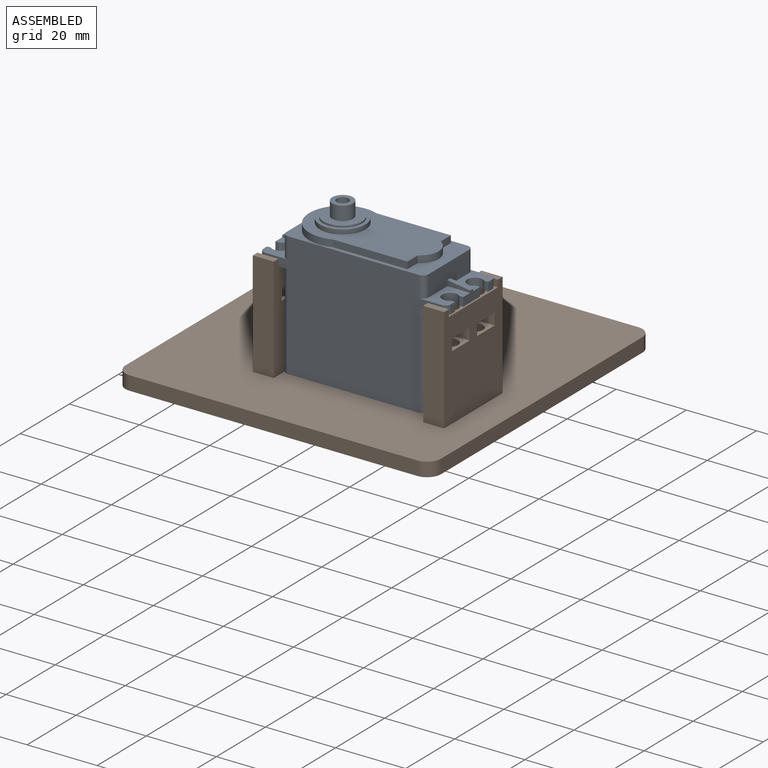
[diagram: assembled view]
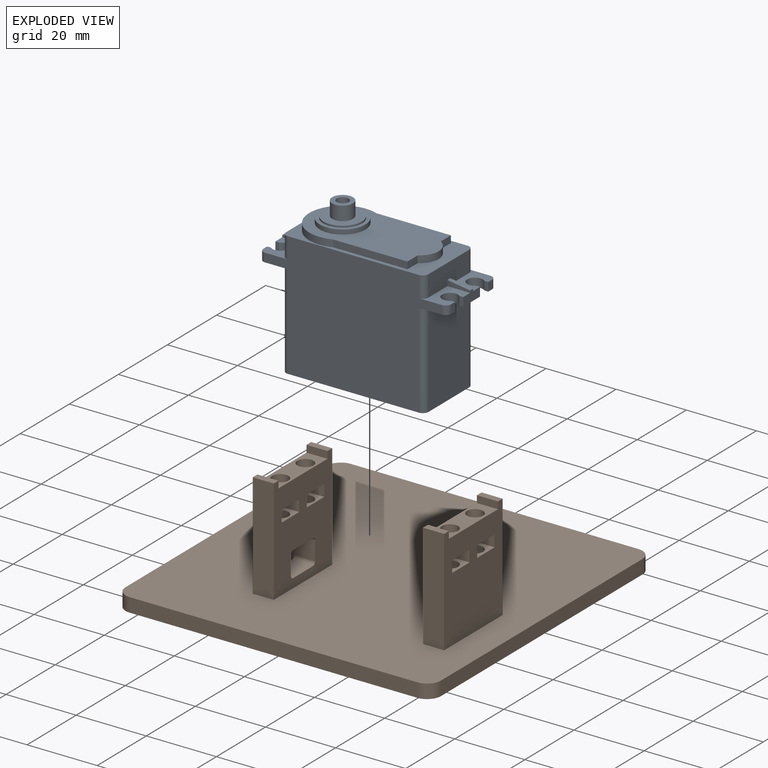
[diagram: exploded view]
GUIDED TOUR — FREECAD ASSEMBLY "Base_Plate"

This assembly has 2 components, labeled P0..P1 below (a component is one placed body or linked part; the same part can appear more than once), held together by 0 modeled joints plus 1 derived contact edge. A joint is a constraint between two components; its type names the relative motion it leaves free:
  CONTACT — a derived adjacency edge — the two components touch in the source model (clearance under 2% of the assembly's diagonal); it is measured from the geometry, not a modeled constraint.
Axis/direction vectors are unit vectors and 'through' points are millimeter coordinates, both in the assembly's world frame.

MATES
  1. CONTACT "contact_0_1": P0 <-> P1, contact direction (0.000, 0.000, -1.000) through (-11.93, 5.04, -10.50) mm (derived from contact, not a modeled constraint)

ASSEMBLY ORDER
  1. P0 — the base component [order verified]
  2. P1 [order verified]
Order-tag legend:
  [order verified] — this step's position reverses a verified removal order: the component was checked to insert without passing through the ones already placed.

Of the 2 components, 2 carry a construction recipe — the FreeCAD feature program (sketches with constraints, then the solid features that consume them) that regenerates the part from scratch, quoted from this document or from the linked companion document it references; the rest are supplied as boundary geometry only. The tour below walks the components in assembly order: each is shown spotlighted twice — in the assembled view, then in the exploded view, where a leader line traces a displaced component back to its assembled socket (components that stay in place when exploded have no leader line; saturated green if recipe-attached, orange if geometry-only; every other component desaturated gray) — followed by its recipe or geometry summary and the mates that hold it.
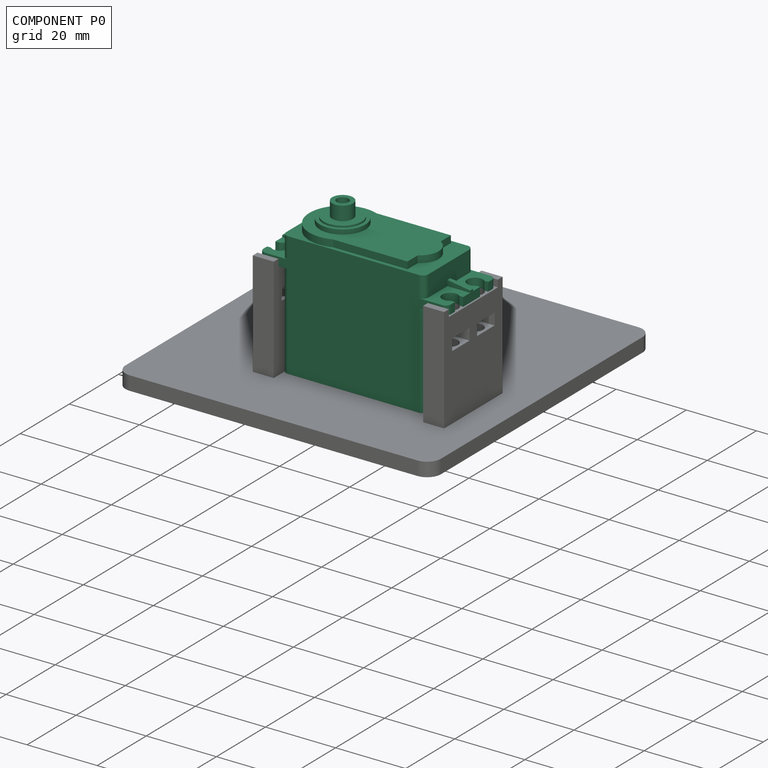
[diagram: component P0 — assembled]
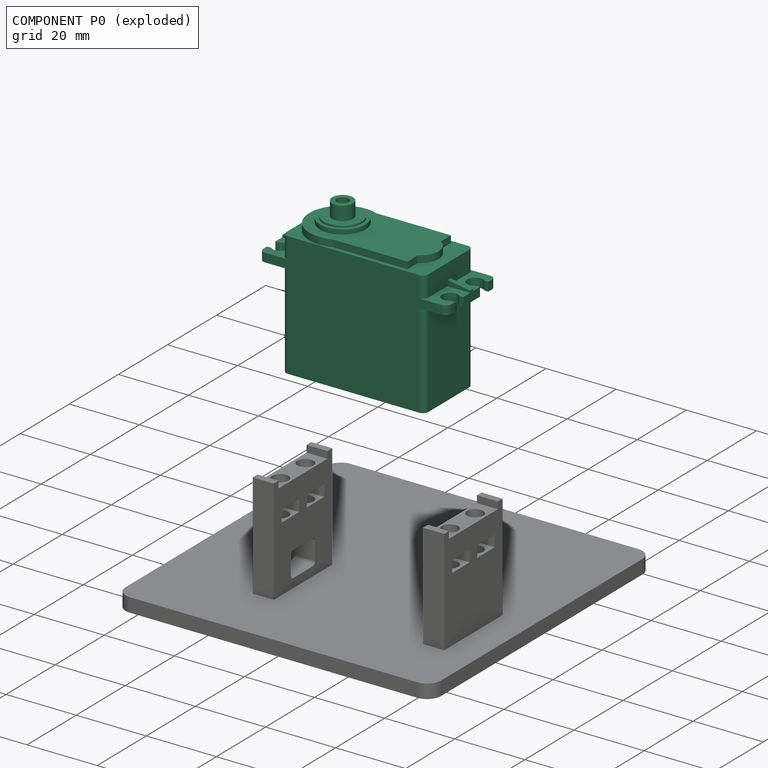
[diagram: component P0 — exploded]
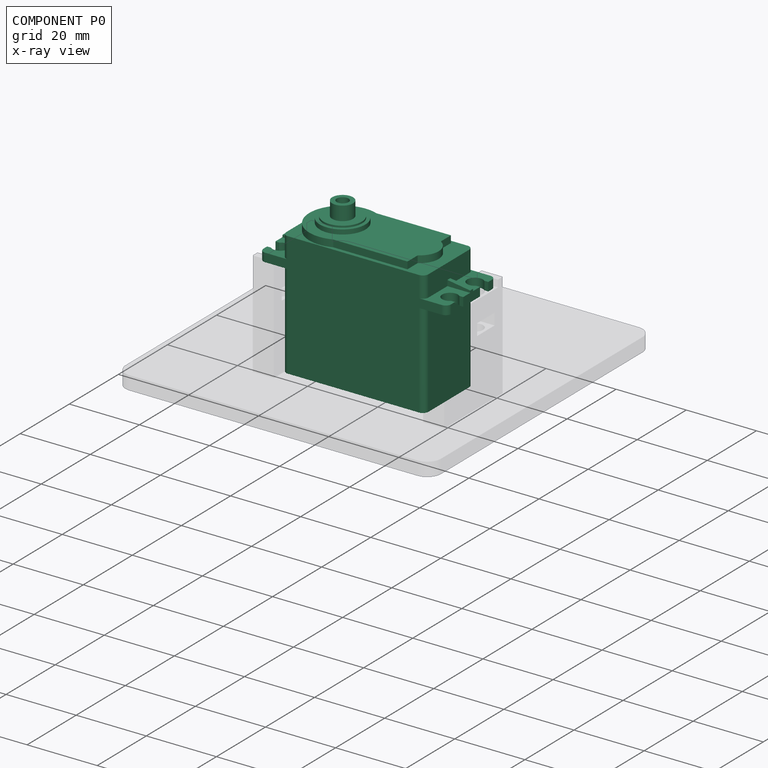
[diagram: component P0 — x-ray view]
COMPONENT P0 — recipe-attached ("Link(Hitec_D625MW)", modeled in this document).
Held by: resting contact with P1 (derived edge).
Construction recipe (the document's own serialized feature program — sketch geometry with constraints, then the solid features built on it; lengths are millimeters unless a unit is written):

FEATURE [Sketcher::SketchObject] Sketch
  ArcFitTolerance = 1e-06
  AttachmentSupport = -> [XY_Plane]
  ExternalBSplineMaxDegree = 5
  ExternalBSplineTolerance = 0.0001
  FullyConstrained = true
  InternalTolerance = 1e-06
  InvalidShape = false
  MakeInternals = false
  MapMode = 5
  Support = -> [XY_Plane]
  TreeRank = 21
  ValidateShape = false
  sketch-geometry (6):
    g0: LineSegment StartX=-40 StartY=-40 StartZ=0 EndX=-40 EndY=40 EndZ=0
    g1: LineSegment StartX=-40 StartY=40 StartZ=0 EndX=40 EndY=40 EndZ=0
    g2: LineSegment StartX=40 StartY=40 StartZ=0 EndX=40 EndY=-40 EndZ=0
    g3: LineSegment StartX=40 StartY=-40 StartZ=0 EndX=-40 EndY=-40 EndZ=0
    g4: GeomPoint [constr] X=0 Y=0 Z=0
    g5: Circle CenterX=0 CenterY=0 CenterZ=0 NormalX=0 NormalY=0 NormalZ=1 AngleXU=0 Radius=10
  constraints (14):
    c: Coincident(g0,g1)
    c: Coincident(g1,g2)
    c: Coincident(g2,g3)
    c: Coincident(g3,g0)
    c: Horizontal(g1)
    c: Horizontal(g3)
    c: Vertical(g0)
    c: Vertical(g2)
    c: Symmetric(g1,g0,g4)
    c: Coincident(g4,g-1)
    c: Equal(g1,g2)
    c: Distance(g1) = 80
    c: Diameter(g5) = 20
    c: Coincident(g5,g4)
FEATURE [PartDesign::Pad] Pad
  AddSubType = 0
  AlongSketchNormal = false
  AutoTaperInnerAngle = true
  CheckUpToFaceLimits = true
  ClaimChildren = false
  Direction = (0,0,1)
  Fit = 0
  FitJoin = 0
  InnerFit = 0
  InnerFitJoin = 0
  InvalidShape = false
  Length = 4
  Length2 = 10
  Linearize = true
  NewSolid = false
  Profile = -> Sketch
  ReferenceAxis = -> Sketch [N_Axis]
  Refine = true
  Suppress = false
  TaperInnerAngle = 0
  TaperInnerAngleRev = 0
  TreeRank = 22
  Type = 0
  ValidateShape = true
  _ProfileBasedVersion = 1
FEATURE [PartDesign::Fillet] Fillet
  AddSubType = 0
  Base = -> Pad [Edge1,Edge8,Edge5,Edge2]
  BaseFeature = -> Pad
  InvalidShape = false
  NewSolid = false
  Radius = 4
  Refine = true
  SupportTransform = false
  Suppress = false
  TreeRank = 23
  UseAllEdges = false
  ValidateShape = true
FEATURE [PartDesign::SubShapeBinder] Binder  label="Binder(*Hitec_D625MW)"
  BindCopyOnChange = 0
  BindMode = 0
  ClaimChildren = false
  Context = -> Assembly [Parts.Part.Body.Binder.]
  EdgeTolerance = 1e-06
  FillStyle = 0
  Fuse = false
  InvalidShape = false
  MakeFace = true
  MergeEdges = true
  OffsetFill = false
  OffsetIntersection = false
  OffsetJoinType = 0
  OffsetOpenResult = false
  Outline = false
  PartialLoad = false
  Relative = true
  SplitEdges = false
  Support = -> [Link]
  TightBound = false
  TreeRank = 39
  ValidateShape = false
  _Version = 8
FEATURE [Sketcher::SketchObject] Sketch001
  ArcFitTolerance = 1e-06
  AttachmentSupport = -> [Fillet]
  ExternalBSplineMaxDegree = 5
  ExternalBSplineTolerance = 0.0001
  ExternalGeometry = -> [Binder]
  FullyConstrained = true
  InternalTolerance = 1e-06
  InvalidShape = false
  MakeInternals = false
  MapMode = 5
  Placement = pos=(0,0,0) rot=(1,0,0;3.14159rad)
  Support = -> [Fillet]
  TreeRank = 38
  ValidateShape = false
  sketch-geometry (10):
    g0: LineSegment StartX=-17.3 StartY=11.9 StartZ=0 EndX=-10.8 EndY=11.9 EndZ=0
    g1: LineSegment StartX=-10.8 StartY=11.9 StartZ=0 EndX=-10.8 EndY=-11.9 EndZ=0
    g2: LineSegment StartX=-10.8 StartY=-11.9 StartZ=0 EndX=-17.3 EndY=-11.9 EndZ=0
    g3: LineSegment StartX=-17.3 StartY=-11.9 StartZ=0 EndX=-17.3 EndY=11.9 EndZ=0
    g4: LineSegment StartX=30.8 StartY=11.9 StartZ=0 EndX=37.3 EndY=11.9 EndZ=0
    g5: LineSegment StartX=37.3 StartY=11.9 StartZ=0 EndX=37.3 EndY=-11.9 EndZ=0
    g6: LineSegment StartX=37.3 StartY=-11.9 StartZ=0 EndX=30.8 EndY=-11.9 EndZ=0
    g7: LineSegment StartX=30.8 StartY=-11.9 StartZ=0 EndX=30.8 EndY=11.9 EndZ=0
    g8: LineSegment [constr] StartX=-15.2 StartY=9.9 StartZ=0 EndX=-15.2 EndY=11.9 EndZ=0
    g9: LineSegment [constr] StartX=-15.2 StartY=-9.9 StartZ=0 EndX=-15.2 EndY=-11.9 EndZ=0
  constraints (30):
    c: Coincident(g0,g1)
    c: Coincident(g1,g2)
    c: Coincident(g2,g3)
    c: Coincident(g3,g0)
    c: Horizontal(g0)
    c: Horizontal(g2)
    c: Vertical(g1)
    c: Vertical(g3)
    c: Coincident(g4,g5)
    c: Coincident(g5,g6)
    c: Coincident(g6,g7)
    c: Coincident(g7,g4)
    c: Horizontal(g4)
    c: Horizontal(g6)
    c: Vertical(g5)
    c: Vertical(g7)
    c: Equal(g1,g7)
    c: Equal(g0,g4)
    c: Distance(g-10,g1) = 0.5
    c: Distance(g-9,g7) = 0.5
    c: Distance(g-4,g3) = 0.5
    c: Horizontal(g4,g0)
    c: Coincident(g8,g-5)
    c: PointOnObject(g8,g0)
    c: Vertical(g8)
    c: Coincident(g9,g-3)
    c: PointOnObject(g9,g2)
    c: Vertical(g9)
    c: Equal(g9,g8)
    c: Distance(g8) = 2
FEATURE [PartDesign::Pad] Pad001
  AddSubType = 0
  AlongSketchNormal = false
  AutoTaperInnerAngle = true
  BaseFeature = -> Fillet
  CheckUpToFaceLimits = true
  ClaimChildren = false
  Direction = (0,0,-1)
  Fit = 0
  FitJoin = 0
  InnerFit = 0
  InnerFitJoin = 0
  InvalidShape = false
  Length = 10
  Length2 = 10
  Linearize = true
  NewSolid = false
  Profile = -> Sketch001
  ReferenceAxis = -> Sketch001 [N_Axis]
  Refine = true
  Suppress = false
  TaperInnerAngle = 0
  TaperInnerAngleRev = 0
  TreeRank = 40
  Type = 3
  UpToFace = -> Binder [Face2]
  ValidateShape = true
  _ProfileBasedVersion = 1
FEATURE [PartDesign::Plane] DatumPlane
  AttachmentSupport = -> [Pad001]
  InvalidShape = false
  Length = 80
  MapMode = 45
  MinimumLength = 10
  MinimumWidth = 10
  Placement = pos=(10,-1.98471e-11,-8) rot=(-0.707107,0.707107,0;3.14159rad)
  ResizeMode = 0
  Support = -> [Pad001]
  TreeRank = 41
  ValidateShape = false
  Width = 80
FEATURE [Sketcher::SketchObject] Sketch002
  ArcFitTolerance = 1e-06
  AttachmentSupport = -> [DatumPlane]
  ExternalBSplineMaxDegree = 5
  ExternalBSplineTolerance = 0.0001
  ExternalGeometry = -> [Binder,Pad001]
  FullyConstrained = true
  InternalTolerance = 1e-06
  InvalidShape = false
  MakeInternals = false
  MapMode = 5
  Placement = pos=(10,-1.98471e-11,-8) rot=(-0.707107,0.707107,0;3.14159rad)
  Support = -> [DatumPlane]
  TreeRank = 42
  ValidateShape = false
  sketch-geometry (8):
    g0: LineSegment StartX=-0.7 StartY=-20.8 StartZ=0 EndX=0.7 EndY=-20.8 EndZ=0
    g1: LineSegment StartX=0.7 StartY=-20.8 StartZ=0 EndX=0.7 EndY=-27.3 EndZ=0
    g2: LineSegment StartX=0.7 StartY=-27.3 StartZ=0 EndX=-0.7 EndY=-27.3 EndZ=0
    g3: LineSegment StartX=-0.7 StartY=-27.3 StartZ=0 EndX=-0.7 EndY=-20.8 EndZ=0
    g4: LineSegment StartX=0.7 StartY=20.8 StartZ=0 EndX=-0.7 EndY=20.8 EndZ=0
    g5: LineSegment StartX=-0.7 StartY=20.8 StartZ=0 EndX=-0.7 EndY=27.3 EndZ=0
    g6: LineSegment StartX=-0.7 StartY=27.3 StartZ=0 EndX=0.7 EndY=27.3 EndZ=0
    g7: LineSegment StartX=0.7 StartY=27.3 StartZ=0 EndX=0.7 EndY=20.8 EndZ=0
  constraints (22):
    c: Coincident(g0,g1)
    c: Coincident(g1,g2)
    c: Coincident(g2,g3)
    c: Coincident(g3,g0)
    c: Horizontal(g2)
    c: Vertical(g1)
    c: Vertical(g3)
    c: PointOnObject(g0,g-8)
    c: PointOnObject(g1,g-7)
    c: Symmetric(g0,g0,g-2)
    c: Distance(g0,g-6) = 0.1
    c: Coincident(g4,g5)
    c: Coincident(g5,g6)
    c: Coincident(g6,g7)
    c: Coincident(g7,g4)
    c: Horizontal(g6)
    c: Vertical(g5)
    c: Vertical(g7)
    c: PointOnObject(g4,g-9)
    c: PointOnObject(g5,g-10)
    c: Symmetric(g4,g4,g-2)
    c: Distance(g4,g-4) = 0.1
FEATURE [PartDesign::Pocket] Pocket
  AddSubType = 1
  AlongSketchNormal = false
  AutoTaperInnerAngle = true
  BaseFeature = -> Pad001
  CheckUpToFaceLimits = true
  ClaimChildren = false
  Direction = (0,0,1)
  Fit = 0
  FitJoin = 0
  InnerFit = 0
  InnerFitJoin = 0
  InvalidShape = false
  Length = 2.5
  Length2 = 10
  Linearize = true
  NewSolid = false
  Profile = -> Sketch002
  ReferenceAxis = -> Sketch002 [N_Axis]
  Refine = true
  Suppress = false
  TaperInnerAngle = 0
  TaperInnerAngleRev = 0
  TreeRank = 43
  Type = 0
  ValidateShape = true
  _ProfileBasedVersion = 1
  _Version = 1
FEATURE [Sketcher::SketchObject] Sketch003
  ArcFitTolerance = 1e-06
  AttachmentSupport = -> [DatumPlane]
  ExternalBSplineMaxDegree = 5
  ExternalBSplineTolerance = 0.0001
  ExternalGeometry = -> [Pocket,Binder]
  FullyConstrained = true
  InternalTolerance = 1e-06
  InvalidShape = false
  MakeInternals = false
  MapMode = 5
  Placement = pos=(10,-1.98471e-11,-8) rot=(-0.707107,0.707107,0;3.14159rad)
  Support = -> [DatumPlane]
  TreeRank = 44
  ValidateShape = false
  sketch-geometry (16):
    g0: LineSegment StartX=-11.9 StartY=-20.8 StartZ=0 EndX=-10 EndY=-20.8 EndZ=0
    g1: LineSegment StartX=-10 StartY=-20.8 StartZ=0 EndX=-10 EndY=-27.3 EndZ=0
    g2: LineSegment StartX=-10 StartY=-27.3 StartZ=0 EndX=-11.9 EndY=-27.3 EndZ=0
    g3: LineSegment StartX=-11.9 StartY=-27.3 StartZ=0 EndX=-11.9 EndY=-20.8 EndZ=0
    g4: LineSegment StartX=11.9 StartY=-20.8 StartZ=0 EndX=10 EndY=-20.8 EndZ=0
    g5: LineSegment StartX=10 StartY=-20.8 StartZ=0 EndX=10 EndY=-27.3 EndZ=0
    g6: LineSegment StartX=10 StartY=-27.3 StartZ=0 EndX=11.9 EndY=-27.3 EndZ=0
    g7: LineSegment StartX=11.9 StartY=-27.3 StartZ=0 EndX=11.9 EndY=-20.8 EndZ=0
    g8: LineSegment StartX=11.9 StartY=27.3 StartZ=0 EndX=10 EndY=27.3 EndZ=0
    g9: LineSegment StartX=10 StartY=27.3 StartZ=0 EndX=10 EndY=20.8 EndZ=0
    g10: LineSegment StartX=10 StartY=20.8 StartZ=0 EndX=11.9 EndY=20.8 EndZ=0
    g11: LineSegment StartX=11.9 StartY=20.8 StartZ=0 EndX=11.9 EndY=27.3 EndZ=0
    g12: LineSegment StartX=-11.9 StartY=27.3 StartZ=0 EndX=-10 EndY=27.3 EndZ=0
    g13: LineSegment StartX=-10 StartY=27.3 StartZ=0 EndX=-10 EndY=20.8 EndZ=0
    g14: LineSegment StartX=-10 StartY=20.8 StartZ=0 EndX=-11.9 EndY=20.8 EndZ=0
    g15: LineSegment StartX=-11.9 StartY=20.8 StartZ=0 EndX=-11.9 EndY=27.3 EndZ=0
  constraints (40):
    c: Coincident(g0,g1)
    c: Coincident(g1,g2)
    c: Coincident(g2,g3)
    c: Coincident(g3,g0)
    c: Horizontal(g0)
    c: Horizontal(g2)
    c: Vertical(g1)
    c: Coincident(g0,g-6)
    c: Coincident(g2,g-6)
    c: Coincident(g4,g5)
    c: Coincident(g5,g6)
    c: Coincident(g6,g7)
    c: Coincident(g7,g4)
    c: Horizontal(g4)
    c: Horizontal(g6)
    c: Vertical(g5)
    c: Coincident(g4,g-5)
    c: Coincident(g6,g-5)
    c: Coincident(g8,g9)
    c: Coincident(g9,g10)
    c: Coincident(g10,g11)
    c: Coincident(g11,g8)
    c: Horizontal(g8)
    c: Horizontal(g10)
    c: Vertical(g9)
    c: Coincident(g8,g-4)
    c: Coincident(g10,g-4)
    c: Coincident(g12,g13)
    c: Coincident(g13,g14)
    c: Coincident(g14,g15)
    c: Coincident(g15,g12)
    c: Horizontal(g12)
    c: Horizontal(g14)
    c: Vertical(g13)
    c: Coincident(g12,g-3)
    c: Coincident(g14,g-3)
    c: Equal(g12,g8)
    c: Equal(g8,g4)
    c: Equal(g4,g0)
    c: Distance(g-7,g13) = 0.1
FEATURE [PartDesign::Pad] Pad002
  AddSubType = 0
  AlongSketchNormal = false
  AutoTaperInnerAngle = true
  BaseFeature = -> Pocket
  CheckUpToFaceLimits = true
  ClaimChildren = false
  Direction = (0,0,-1)
  Fit = 0
  FitJoin = 0
  InnerFit = 0
  InnerFitJoin = 0
  InvalidShape = false
  Length = 2
  Length2 = 10
  Linearize = true
  NewSolid = false
  Profile = -> Sketch003
  ReferenceAxis = -> Sketch003 [N_Axis]
  Refine = true
  Suppress = false
  TaperInnerAngle = 0
  TaperInnerAngleRev = 0
  TreeRank = 45
  Type = 0
  ValidateShape = true
  _ProfileBasedVersion = 1
FEATURE [Sketcher::SketchObject] Sketch004
  ArcFitTolerance = 1e-06
  AttachmentSupport = -> [Pad002]
  ExternalBSplineMaxDegree = 5
  ExternalBSplineTolerance = 0.0001
  ExternalGeometry = -> [Binder]
  FullyConstrained = true
  InternalTolerance = 1e-06
  InvalidShape = false
  MakeInternals = false
  MapMode = 5
  Placement = pos=(0,0,4) rot=(0,0,1;0rad)
  Support = -> [Pad002]
  TreeRank = 46
  ValidateShape = false
  sketch-geometry (8):
    g0: Circle CenterX=-14.2 CenterY=5.1 CenterZ=0 NormalX=0 NormalY=0 NormalZ=1 AngleXU=0 Radius=2.3
    g1: Circle CenterX=-14.2 CenterY=-5.1 CenterZ=0 NormalX=0 NormalY=0 NormalZ=1 AngleXU=0 Radius=2.3
    g2: Circle CenterX=34.2 CenterY=5.1 CenterZ=0 NormalX=0 NormalY=0 NormalZ=1 AngleXU=0 Radius=2.3
    g3: Circle CenterX=34.2 CenterY=-5.1 CenterZ=0 NormalX=0 NormalY=0 NormalZ=1 AngleXU=0 Radius=2.3
    g4: Circle CenterX=-14.2 CenterY=5.1 CenterZ=0 NormalX=0 NormalY=0 NormalZ=1 AngleXU=0 Radius=3.75
    g5: Circle CenterX=-14.2 CenterY=-5.1 CenterZ=0 NormalX=0 NormalY=0 NormalZ=1 AngleXU=0 Radius=3.75
    g6: Circle CenterX=34.2 CenterY=5.1 CenterZ=0 NormalX=0 NormalY=0 NormalZ=1 AngleXU=0 Radius=3.75
    g7: Circle CenterX=34.2 CenterY=-5.1 CenterZ=0 NormalX=0 NormalY=0 NormalZ=1 AngleXU=0 Radius=3.75
  constraints (16):
    c: Coincident(g0,g-4)
    c: Coincident(g1,g-3)
    c: Coincident(g2,g-6)
    c: Coincident(g3,g-5)
    c: Equal(g2,g3)
    c: Equal(g3,g1)
    c: Equal(g1,g0)
    c: Diameter(g0) = 4.6
    c: Coincident(g4,g0)
    c: Coincident(g5,g1)
    c: Coincident(g6,g2)
    c: Coincident(g7,g3)
    c: Equal(g7,g6)
    c: Equal(g6,g4)
    c: Equal(g4,g5)
    c: Diameter(g5) = 7.5
FEATURE [PartDesign::Pocket] Pocket001
  AddSubType = 1
  AlongSketchNormal = false
  AutoTaperInnerAngle = true
  BaseFeature = -> Pad002
  CheckUpToFaceLimits = true
  ClaimChildren = false
  Direction = (0,0,-1)
  Fit = 0
  FitJoin = 0
  InnerFit = 0
  InnerFitJoin = 0
  InvalidShape = false
  Length = 5
  Length2 = 10
  Linearize = true
  NewSolid = false
  Profile = -> Sketch004 [Edge4,Edge3,Edge2,Edge1]
  ReferenceAxis = -> Sketch004 [N_Axis]
  Refine = true
  Suppress = false
  TaperInnerAngle = 0
  TaperInnerAngleRev = 0
  TreeRank = 47
  Type = 1
  ValidateShape = true
  _ProfileBasedVersion = 1
  _Version = 1
FEATURE [PartDesign::Pocket] Pocket002
  AddSubType = 1
  AlongSketchNormal = false
  AutoTaperInnerAngle = true
  BaseFeature = -> Pocket001
  CheckUpToFaceLimits = true
  ClaimChildren = false
  Direction = (0,0,-1)
  Fit = 0
  FitJoin = 0
  InnerFit = 0
  InnerFitJoin = 0
  InvalidShape = false
  Length = 3
  Length2 = 10
  Linearize = true
  NewSolid = false
  Profile = -> Sketch004 [Edge7,Edge8,Edge6,Edge5]
  ReferenceAxis = -> Sketch004 [N_Axis]
  Refine = true
  Suppress = false
  TaperInnerAngle = 0
  TaperInnerAngleRev = 0
  TreeRank = 48
  Type = 0
  ValidateShape = true
  _ProfileBasedVersion = 1
  _Version = 1
FEATURE [PartDesign::Body] Body
  AutoGroupSolids = false
  ClaimAllChildren = false
  ExportMode = 0
  Group = -> [Sketch,Pad,Fillet,Binder,Sketch001,Pad001,DatumPlane,Sketch002,Pocket,Sketch003,Pad002,Sketch004,Pocket001,Pocket002]
  InvalidShape = false
  Origin = -> Origin001
  Tip = -> Pocket002
  TreeRank = 19
  ValidateShape = false
  _ExportChildren = -> [Pad,Fillet,Binder,Pad001,DatumPlane,Pocket,Pad002,Pocket001,Pocket002]
  _GroupVersion = 1
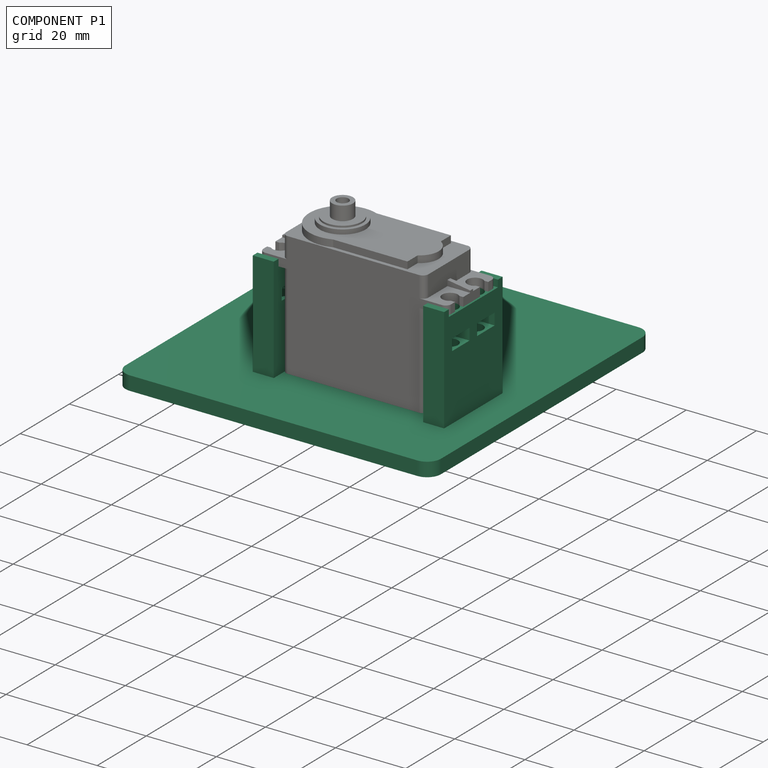
[diagram: component P1 — assembled]
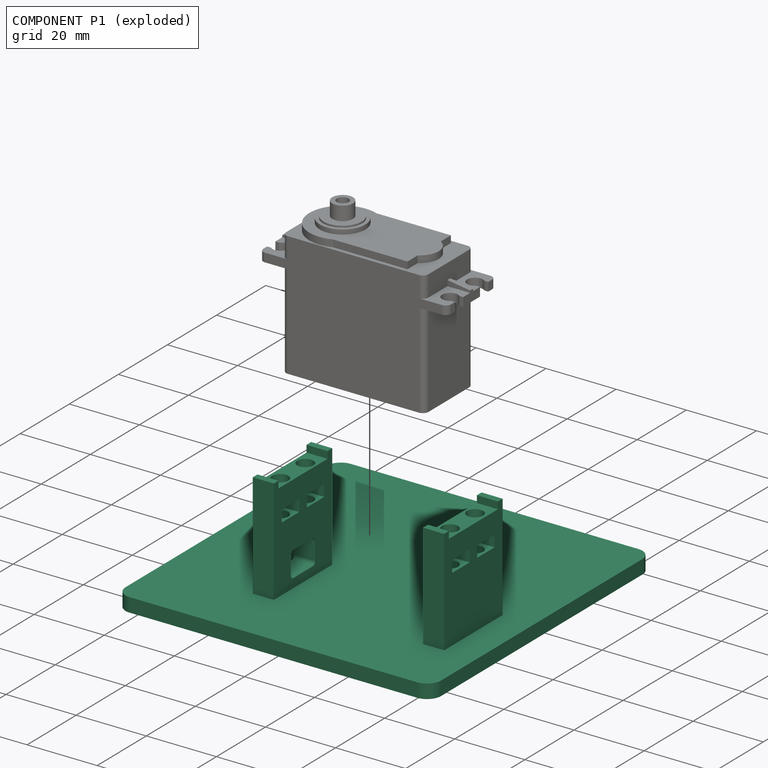
[diagram: component P1 — exploded]
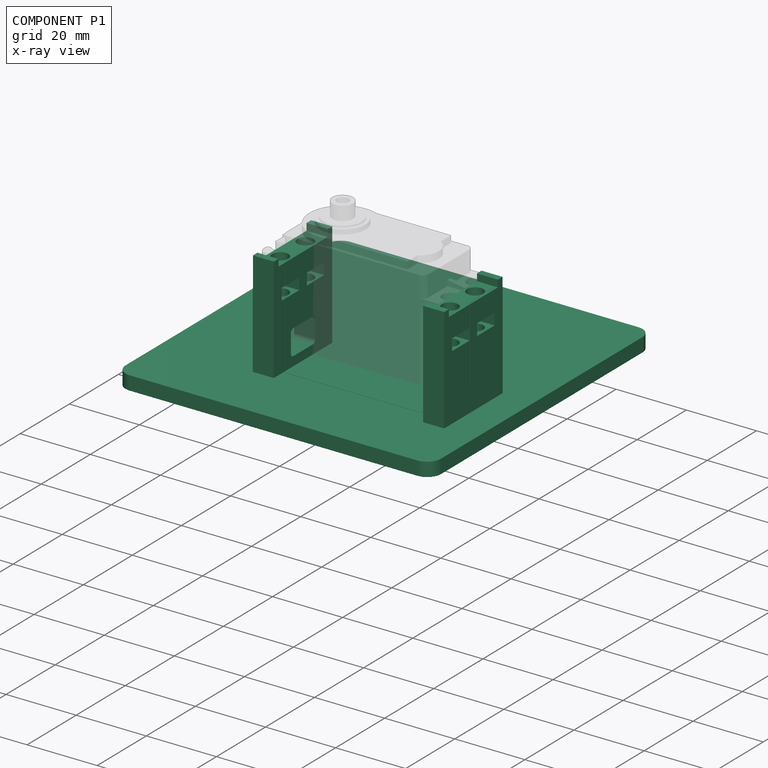
[diagram: component P1 — x-ray view]
COMPONENT P1 — recipe-attached ("Base_Plate_V2", modeled in this document).
Held by: resting contact with P0 (derived edge).
Construction recipe (the document's own serialized feature program — sketch geometry with constraints, then the solid features built on it; lengths are millimeters unless a unit is written):

FEATURE [PartDesign::SubShapeBinder] Binder001  label="Binder001(*Hitec_D625MW)"
  BindCopyOnChange = 0
  BindMode = 0
  ClaimChildren = false
  Context = -> <external Final_Assembly.FCStd>#Assembly [Parts.Link.Parts.Part001.Body001.Binder001.]
  EdgeTolerance = 1e-06
  FillStyle = 0
  Fuse = false
  InvalidShape = false
  MakeFace = true
  MergeEdges = true
  OffsetFill = false
  OffsetIntersection = false
  OffsetJoinType = 0
  OffsetOpenResult = false
  Outline = false
  PartialLoad = false
  Relative = true
  SplitEdges = false
  Support = -> [Link]
  TightBound = false
  TreeRank = 68
  ValidateShape = false
  _Version = 8
FEATURE [PartDesign::Plane] DatumPlane001
  AttachmentOffset = pos=(0,0,1) rot=(0,0,1;0rad)
  AttachmentSupport = -> [Binder001]
  InvalidShape = false
  Length = 10
  MapMode = 5
  MinimumLength = 10
  MinimumWidth = 10
  Placement = pos=(0,0,-38.5) rot=(1,0,0;3.14159rad)
  ResizeMode = 0
  Support = -> [Binder001]
  TreeRank = 69
  ValidateShape = false
  Width = 10
FEATURE [Sketcher::SketchObject] Sketch005
  ArcFitTolerance = 1e-06
  AttachmentSupport = -> [DatumPlane001]
  ExternalBSplineMaxDegree = 5
  ExternalBSplineTolerance = 0.0001
  ExternalGeometry = -> [Binder001]
  FullyConstrained = true
  InternalTolerance = 1e-06
  InvalidShape = false
  MakeInternals = false
  MapMode = 5
  Placement = pos=(0,0,-38.5) rot=(1,0,0;3.14159rad)
  Support = -> [DatumPlane001]
  TreeRank = 70
  ValidateShape = false
  sketch-geometry (6):
    g0: LineSegment StartX=-43.7 StartY=-60 StartZ=0 EndX=46.3 EndY=-60 EndZ=0
    g1: LineSegment StartX=46.3 StartY=-60 StartZ=0 EndX=46.3 EndY=30 EndZ=0
    g2: LineSegment StartX=46.3 StartY=30 StartZ=0 EndX=-43.7 EndY=30 EndZ=0
    g3: LineSegment StartX=-43.7 StartY=30 StartZ=0 EndX=-43.7 EndY=-60 EndZ=0
    g4: LineSegment [constr] StartX=-8.7 StartY=9.9 StartZ=0 EndX=-43.7 EndY=9.9 EndZ=0
    g5: LineSegment [constr] StartX=28.7 StartY=9.9 StartZ=0 EndX=46.3 EndY=9.9 EndZ=0
  constraints (18):
    c: Coincident(g0,g1)
    c: Coincident(g1,g2)
    c: Coincident(g2,g3)
    c: Coincident(g3,g0)
    c: Horizontal(g0)
    c: Horizontal(g2)
    c: Vertical(g3)
    c: Equal(g1,g0)
    c: Distance(g1) = 90
    c: Coincident(g4,g-3)
    c: PointOnObject(g4,g3)
    c: Horizontal(g4)
    c: Coincident(g5,g-3)
    c: PointOnObject(g5,g1)
    c: Horizontal(g5)
    c: DistanceY(g-1,g2) = 30
    c: Vertical(g1)
    c: Distance(g4) = 35
FEATURE [PartDesign::Pad] Pad003
  AddSubType = 0
  AlongSketchNormal = false
  AutoTaperInnerAngle = true
  CheckUpToFaceLimits = true
  ClaimChildren = false
  Direction = (0,0,-1)
  Fit = 0
  FitJoin = 0
  InnerFit = 0
  InnerFitJoin = 0
  InvalidShape = false
  Length = 4
  Length2 = 10
  Linearize = true
  NewSolid = false
  Profile = -> Sketch005
  ReferenceAxis = -> Sketch005 [N_Axis]
  Refine = true
  Suppress = false
  TaperInnerAngle = 0
  TaperInnerAngleRev = 0
  TreeRank = 71
  Type = 0
  ValidateShape = true
  _ProfileBasedVersion = 1
FEATURE [Sketcher::SketchObject] Sketch006
  ArcFitTolerance = 1e-06
  AttachmentSupport = -> [Pad003]
  ExternalBSplineMaxDegree = 5
  ExternalBSplineTolerance = 0.0001
  ExternalGeometry = -> [Binder001]
  FullyConstrained = true
  InternalTolerance = 1e-06
  InvalidShape = false
  MakeInternals = false
  MapMode = 5
  Placement = pos=(0,0,-38.5) rot=(0,0,1;0rad)
  Support = -> [Pad003]
  TreeRank = 72
  ValidateShape = false
  sketch-geometry (10):
    g0: LineSegment StartX=31.3 StartY=11.9 StartZ=0 EndX=37.3 EndY=11.9 EndZ=0
    g1: LineSegment StartX=37.3 StartY=11.9 StartZ=0 EndX=37.3 EndY=-11.9 EndZ=0
    g2: LineSegment StartX=37.3 StartY=-11.9 StartZ=0 EndX=31.3 EndY=-11.9 EndZ=0
    g3: LineSegment StartX=31.3 StartY=-11.9 StartZ=0 EndX=31.3 EndY=11.9 EndZ=0
    g4: LineSegment StartX=-11.3 StartY=11.9 StartZ=0 EndX=-17.3 EndY=11.9 EndZ=0
    g5: LineSegment StartX=-17.3 StartY=11.9 StartZ=0 EndX=-17.3 EndY=-11.9 EndZ=0
    g6: LineSegment StartX=-17.3 StartY=-11.9 StartZ=0 EndX=-11.3 EndY=-11.9 EndZ=0
    g7: LineSegment StartX=-11.3 StartY=-11.9 StartZ=0 EndX=-11.3 EndY=11.9 EndZ=0
    g8: LineSegment [constr] StartX=-15.2 StartY=-9.9 StartZ=0 EndX=-15.2 EndY=-11.9 EndZ=0
    g9: LineSegment [constr] StartX=-15.2 StartY=9.9 StartZ=0 EndX=-15.2 EndY=11.9 EndZ=0
  constraints (28):
    c: Coincident(g0,g1)
    c: Coincident(g1,g2)
    c: Coincident(g2,g3)
    c: Coincident(g3,g0)
    c: Horizontal(g0)
    c: Horizontal(g2)
    c: Vertical(g3)
    c: Coincident(g4,g5)
    c: Coincident(g5,g6)
    c: Coincident(g6,g7)
    c: Coincident(g7,g4)
    c: Horizontal(g4)
    c: Horizontal(g6)
    c: Vertical(g7)
    c: Distance(g-3,g3) = 1
    c: Distance(g-4,g7) = 1
    c: Symmetric(g0,g1,g-1)
    c: Symmetric(g5,g4,g-1)
    c: Distance(g-6,g5) = 0.5
    c: Distance(g-5,g1) = 0.5
    c: Equal(g5,g1)
    c: Coincident(g8,g-7)
    c: PointOnObject(g8,g6)
    c: Vertical(g8)
    c: Coincident(g9,g-8)
    c: PointOnObject(g9,g4)
    c: Vertical(g9)
    c: Distance(g8) = 2
FEATURE [PartDesign::Pad] Pad004
  AddSubType = 0
  AlongSketchNormal = false
  AutoTaperInnerAngle = true
  BaseFeature = -> Pad003
  CheckUpToFaceLimits = true
  ClaimChildren = false
  Direction = (0,0,1)
  Fit = 0
  FitJoin = 0
  InnerFit = 0
  InnerFitJoin = 0
  InvalidShape = false
  Length = 10
  Length2 = 10
  Linearize = true
  NewSolid = false
  Profile = -> Sketch006
  ReferenceAxis = -> Sketch006 [N_Axis]
  Refine = true
  Suppress = false
  TaperInnerAngle = 0
  TaperInnerAngleRev = 0
  TreeRank = 73
  Type = 3
  UpToFace = -> Binder001 [Face37]
  ValidateShape = true
  _ProfileBasedVersion = 1
FEATURE [PartDesign::Plane] DatumPlane002
  AttachmentSupport = -> [Pad004]
  InvalidShape = false
  Length = 10
  MapMode = 45
  MinimumLength = 10
  MinimumWidth = 10
  Placement = pos=(10,-6e-16,-10.5) rot=(0,0,1;1.5708rad)
  ResizeMode = 0
  Support = -> [Pad004]
  TreeRank = 74
  ValidateShape = false
  Width = 10
FEATURE [Sketcher::SketchObject] Sketch007
  ArcFitTolerance = 1e-06
  AttachmentSupport = -> [DatumPlane002]
  ExternalBSplineMaxDegree = 5
  ExternalBSplineTolerance = 0.0001
  ExternalGeometry = -> [Pad004,Binder001]
  FullyConstrained = true
  InternalTolerance = 1e-06
  InvalidShape = false
  MakeInternals = false
  MapMode = 5
  Placement = pos=(10,-6e-16,-10.5) rot=(0,0,1;1.5708rad)
  Support = -> [DatumPlane002]
  TreeRank = 75
  ValidateShape = false
  sketch-geometry (16):
    g0: LineSegment StartX=-11.9 StartY=-21.3 StartZ=0 EndX=-10 EndY=-21.3 EndZ=0
    g1: LineSegment StartX=-10 StartY=-21.3 StartZ=0 EndX=-10 EndY=-27.3 EndZ=0
    g2: LineSegment StartX=-10 StartY=-27.3 StartZ=0 EndX=-11.9 EndY=-27.3 EndZ=0
    g3: LineSegment StartX=-11.9 StartY=-27.3 StartZ=0 EndX=-11.9 EndY=-21.3 EndZ=0
    g4: LineSegment StartX=11.9 StartY=-21.3 StartZ=0 EndX=10 EndY=-21.3 EndZ=0
    g5: LineSegment StartX=10 StartY=-21.3 StartZ=0 EndX=10 EndY=-27.3 EndZ=0
    g6: LineSegment StartX=10 StartY=-27.3 StartZ=0 EndX=11.9 EndY=-27.3 EndZ=0
    g7: LineSegment StartX=11.9 StartY=-27.3 StartZ=0 EndX=11.9 EndY=-21.3 EndZ=0
    g8: LineSegment StartX=11.9 StartY=27.3 StartZ=0 EndX=10 EndY=27.3 EndZ=0
    g9: LineSegment StartX=10 StartY=27.3 StartZ=0 EndX=10 EndY=21.3 EndZ=0
    g10: LineSegment StartX=10 StartY=21.3 StartZ=0 EndX=11.9 EndY=21.3 EndZ=0
    g11: LineSegment StartX=11.9 StartY=21.3 StartZ=0 EndX=11.9 EndY=27.3 EndZ=0
    g12: LineSegment StartX=-11.9 StartY=27.3 StartZ=0 EndX=-10 EndY=27.3 EndZ=0
    g13: LineSegment StartX=-10 StartY=27.3 StartZ=0 EndX=-10 EndY=21.3 EndZ=0
    g14: LineSegment StartX=-10 StartY=21.3 StartZ=0 EndX=-11.9 EndY=21.3 EndZ=0
    g15: LineSegment StartX=-11.9 StartY=21.3 StartZ=0 EndX=-11.9 EndY=27.3 EndZ=0
  constraints (40):
    c: Coincident(g0,g1)
    c: Coincident(g1,g2)
    c: Coincident(g2,g3)
    c: Coincident(g3,g0)
    c: Horizontal(g0)
    c: Horizontal(g2)
    c: Vertical(g1)
    c: Coincident(g0,g-6)
    c: Coincident(g4,g5)
    c: Coincident(g5,g6)
    c: Coincident(g6,g7)
    c: Coincident(g7,g4)
    c: Horizontal(g4)
    c: Horizontal(g6)
    c: Vertical(g5)
    c: Coincident(g4,g-5)
    c: Coincident(g8,g9)
    c: Coincident(g9,g10)
    c: Coincident(g10,g11)
    c: Coincident(g11,g8)
    c: Horizontal(g8)
    c: Horizontal(g10)
    c: Vertical(g9)
    c: Coincident(g8,g-4)
    c: Coincident(g12,g13)
    c: Coincident(g13,g14)
    c: Coincident(g14,g15)
    c: Coincident(g15,g12)
    c: Horizontal(g12)
    c: Horizontal(g14)
    c: Vertical(g13)
    c: Coincident(g12,g-3)
    c: Coincident(g14,g-3)
    c: Coincident(g2,g-6)
    c: Coincident(g6,g-5)
    c: Coincident(g10,g-4)
    c: Equal(g8,g12)
    c: Equal(g12,g2)
    c: Equal(g2,g6)
    c: Distance(g9,g-7) = 0.1
FEATURE [PartDesign::Pad] Pad005
  AddSubType = 0
  AlongSketchNormal = false
  AutoTaperInnerAngle = true
  BaseFeature = -> Pad004
  CheckUpToFaceLimits = true
  ClaimChildren = false
  Direction = (-1e-16,0,1)
  Fit = 0
  FitJoin = 0
  InnerFit = 0
  InnerFitJoin = 0
  InvalidShape = false
  Length = 2
  Length2 = 10
  Linearize = true
  NewSolid = false
  Profile = -> Sketch007
  ReferenceAxis = -> Sketch007 [N_Axis]
  Refine = true
  Suppress = false
  TaperInnerAngle = 0
  TaperInnerAngleRev = 0
  TreeRank = 76
  Type = 0
  ValidateShape = true
  _ProfileBasedVersion = 1
FEATURE [Sketcher::SketchObject] Sketch008
  ArcFitTolerance = 1e-06
  AttachmentSupport = -> [DatumPlane002]
  ExternalBSplineMaxDegree = 5
  ExternalBSplineTolerance = 0.0001
  ExternalGeometry = -> [Binder001]
  FullyConstrained = true
  InternalTolerance = 1e-06
  InvalidShape = false
  MakeInternals = false
  MapMode = 5
  Placement = pos=(10,-6e-16,-10.5) rot=(0,0,1;1.5708rad)
  Support = -> [DatumPlane002]
  TreeRank = 77
  ValidateShape = false
  sketch-geometry (4):
    g0: Circle CenterX=-5.1 CenterY=24.2 CenterZ=0 NormalX=0 NormalY=0 NormalZ=1 AngleXU=0 Radius=2.3
    g1: Circle CenterX=5.1 CenterY=24.2 CenterZ=0 NormalX=0 NormalY=0 NormalZ=1 AngleXU=0 Radius=2.3
    g2: Circle CenterX=-5.1 CenterY=-24.2 CenterZ=0 NormalX=0 NormalY=0 NormalZ=1 AngleXU=0 Radius=2.3
    g3: Circle CenterX=5.1 CenterY=-24.2 CenterZ=0 NormalX=0 NormalY=0 NormalZ=1 AngleXU=0 Radius=2.3
  constraints (8):
    c: Coincident(g0,g-5)
    c: Coincident(g1,g-6)
    c: Coincident(g2,g-3)
    c: Coincident(g3,g-4)
    c: Equal(g3,g2)
    c: Equal(g2,g0)
    c: Equal(g0,g1)
    c: Diameter(g2) = 4.6
FEATURE [PartDesign::Pocket] Pocket003
  AddSubType = 1
  AlongSketchNormal = false
  AutoTaperInnerAngle = true
  BaseFeature = -> Pad005
  CheckUpToFaceLimits = true
  ClaimChildren = false
  Direction = (1e-16,0,-1)
  Fit = 0
  FitJoin = 0
  InnerFit = 0
  InnerFitJoin = 0
  InvalidShape = false
  Length = 17
  Length2 = 10
  Linearize = true
  NewSolid = false
  Profile = -> Sketch008
  ReferenceAxis = -> Sketch008 [N_Axis]
  Refine = true
  Suppress = false
  TaperInnerAngle = 0
  TaperInnerAngleRev = 0
  TreeRank = 78
  Type = 0
  ValidateShape = true
  _ProfileBasedVersion = 1
  _Version = 1
FEATURE [PartDesign::Plane] DatumPlane003
  AttachmentOffset = pos=(0,0,0) rot=(1,0,0;1.5708rad)
  AttachmentSupport = -> [Pocket003]
  InvalidShape = false
  Length = 24.3309
  MapMode = 45
  MinimumLength = 10
  MinimumWidth = 10
  Placement = pos=(10,4e-16,-24.3309) rot=(0,1,0;4.71239rad)
  ResizeMode = 0
  Support = -> [Pocket003]
  TreeRank = 79
  ValidateShape = false
  Width = 10
FEATURE [Sketcher::SketchObject] Sketch009
  ArcFitTolerance = 1e-06
  AttachmentSupport = -> [DatumPlane003]
  ExternalBSplineMaxDegree = 5
  ExternalBSplineTolerance = 0.0001
  ExternalGeometry = -> [Pocket003,Binder001]
  FullyConstrained = true
  InternalTolerance = 1e-06
  InvalidShape = false
  MakeInternals = false
  MapMode = 5
  Placement = pos=(10,4e-16,-24.3309) rot=(0,-1,0;1.5708rad)
  Support = -> [DatumPlane003]
  TreeRank = 80
  ValidateShape = false
  sketch-geometry (11):
    g0: GeomPoint [constr] X=13.8309 Y=5.1 Z=0
    g1: GeomPoint [constr] X=13.8309 Y=-5.1 Z=0
    g2: LineSegment StartX=7.83086 StartY=-8.65 StartZ=0 EndX=4.53086 EndY=-8.65 EndZ=0
    g3: LineSegment StartX=4.53086 StartY=-8.65 StartZ=0 EndX=4.53086 EndY=-1.55 EndZ=0
    g4: LineSegment StartX=4.53086 StartY=-1.55 StartZ=0 EndX=7.83086 EndY=-1.55 EndZ=0
    g5: LineSegment StartX=7.83086 StartY=-1.55 StartZ=0 EndX=7.83086 EndY=-8.65 EndZ=0
    g6: LineSegment StartX=7.83086 StartY=1.55 StartZ=0 EndX=4.53086 EndY=1.55 EndZ=0
    g7: LineSegment StartX=4.53086 StartY=1.55 StartZ=0 EndX=4.53086 EndY=8.65 EndZ=0
    g8: LineSegment StartX=4.53086 StartY=8.65 StartZ=0 EndX=7.83086 EndY=8.65 EndZ=0
    g9: LineSegment StartX=7.83086 StartY=8.65 StartZ=0 EndX=7.83086 EndY=1.55 EndZ=0
    g10: LineSegment [constr] StartX=13.8309 StartY=-5.1 StartZ=0 EndX=7.83086 EndY=-5.1 EndZ=0
  constraints (27):
    c: Symmetric(g-4,g-5,g1)
    c: Symmetric(g-6,g-7,g0)
    c: Coincident(g2,g3)
    c: Coincident(g3,g4)
    c: Coincident(g4,g5)
    c: Coincident(g5,g2)
    c: Horizontal(g2)
    c: Horizontal(g4)
    c: Vertical(g3)
    c: Vertical(g5)
    c: Coincident(g6,g7)
    c: Coincident(g7,g8)
    c: Coincident(g8,g9)
    c: Coincident(g9,g6)
    c: Horizontal(g6)
    c: Horizontal(g8)
    c: Vertical(g7)
    c: Vertical(g9)
    c: Equal(g5,g9)
    c: Equal(g4,g6)
    c: Symmetric(g4,g6,g-1)
    c: Distance(g3) = 7.1
    c: Distance(g2) = 3.3
    c: Coincident(g10,g1)
    c: Horizontal(g10)
    c: Symmetric(g4,g2,g10)
    c: Distance(g10) = 6
FEATURE [PartDesign::Pocket] Pocket004
  AddSubType = 1
  AlongSketchNormal = false
  AutoTaperInnerAngle = true
  BaseFeature = -> Pocket003
  CheckUpToFaceLimits = true
  ClaimChildren = false
  Direction = (1,6.04e-14,1.848e-13)
  Fit = 0
  FitJoin = 0
  InnerFit = 0
  InnerFitJoin = 0
  InvalidShape = false
  Length = 5
  Length2 = 10
  Linearize = true
  Midplane = true
  NewSolid = false
  Profile = -> Sketch009
  ReferenceAxis = -> Sketch009 [N_Axis]
  Refine = true
  Suppress = false
  TaperInnerAngle = 0
  TaperInnerAngleRev = 0
  TreeRank = 81
  Type = 1
  ValidateShape = true
  _ProfileBasedVersion = 1
  _Version = 1
FEATURE [PartDesign::Plane] DatumPlane004
  AttachmentSupport = -> [Pocket004]
  InvalidShape = false
  Length = 19.8
  MapMode = 5
  MinimumLength = 10
  MinimumWidth = 10
  Placement = pos=(-11.3,0,0) rot=(0.57735,0.57735,0.57735;2.0944rad)
  ResizeMode = 0
  Support = -> [Pocket004]
  TreeRank = 82
  ValidateShape = false
  Width = 43.3
FEATURE [Sketcher::SketchObject] Sketch010
  ArcFitTolerance = 1e-06
  AttachmentSupport = -> [DatumPlane004]
  ExternalBSplineMaxDegree = 5
  ExternalBSplineTolerance = 0.0001
  ExternalGeometry = -> [Binder001]
  FullyConstrained = true
  InternalTolerance = 1e-06
  InvalidShape = false
  MakeInternals = false
  MapMode = 5
  Placement = pos=(-11.3,0,0) rot=(0.57735,0.57735,0.57735;2.0944rad)
  Support = -> [DatumPlane004]
  TreeRank = 83
  ValidateShape = false
  sketch-geometry (7):
    g0: LineSegment StartX=4.95 StartY=-35.9 StartZ=0 EndX=4.95 EndY=-28.7 EndZ=0
    g1: LineSegment StartX=4.95 StartY=-28.7 StartZ=0 EndX=-4.95 EndY=-28.7 EndZ=0
    g2: LineSegment StartX=-4.95 StartY=-28.7 StartZ=0 EndX=-4.95 EndY=-35.9 EndZ=0
    g3: LineSegment StartX=-4.95 StartY=-35.9 StartZ=0 EndX=4.95 EndY=-35.9 EndZ=0
    g4: GeomPoint [constr] X=0 Y=-32.3 Z=0
    g5: LineSegment [constr] StartX=-4.95 StartY=-28.7 StartZ=0 EndX=-3.45 EndY=-30.2 EndZ=0
    g6: LineSegment [constr] StartX=-4.95 StartY=-35.9 StartZ=0 EndX=-3.45 EndY=-34.4 EndZ=0
  constraints (17):
    c: Coincident(g0,g1)
    c: Coincident(g1,g2)
    c: Coincident(g2,g3)
    c: Coincident(g3,g0)
    c: Horizontal(g1)
    c: Horizontal(g3)
    c: Vertical(g0)
    c: Vertical(g2)
    c: Symmetric(g1,g0,g4)
    c: PointOnObject(g4,g-2)
    c: Coincident(g5,g1)
    c: Coincident(g5,g-4)
    c: Angle(g5,g1) = 0.785398
    c: Distance(g-4,g2) = 1.5
    c: Coincident(g6,g2)
    c: Coincident(g6,g-4)
    c: Angle(g3,g6) = 0.785398
FEATURE [PartDesign::Pocket] Pocket005
  AddSubType = 1
  AlongSketchNormal = false
  AutoTaperInnerAngle = true
  BaseFeature = -> Pocket004
  CheckUpToFaceLimits = true
  ClaimChildren = false
  Direction = (-1,0,0)
  Fit = 0
  FitJoin = 0
  InnerFit = 0
  InnerFitJoin = 0
  InvalidShape = false
  Length = 10
  Length2 = 10
  Linearize = true
  NewSolid = false
  Profile = -> Sketch010
  ReferenceAxis = -> Sketch010 [N_Axis]
  Refine = true
  Suppress = false
  TaperInnerAngle = 0
  TaperInnerAngleRev = 0
  TreeRank = 84
  Type = 0
  ValidateShape = true
  _ProfileBasedVersion = 1
  _Version = 1
FEATURE [PartDesign::Fillet] Fillet001
  AddSubType = 0
  Base = -> Pocket005 [Edge105,Edge108,Edge107,Edge106]
  BaseFeature = -> Pocket005
  InvalidShape = false
  NewSolid = false
  Radius = 1
  Refine = true
  SupportTransform = false
  Suppress = false
  TreeRank = 85
  UseAllEdges = false
  ValidateShape = true
FEATURE [PartDesign::Fillet] Fillet002
  AddSubType = 0
  Base = -> Fillet001 [Edge92,Edge90,Edge88,Edge87]
  BaseFeature = -> Fillet001
  InvalidShape = false
  NewSolid = false
  Radius = 4
  Refine = true
  SupportTransform = false
  Suppress = false
  TreeRank = 86
  UseAllEdges = false
  ValidateShape = true
FEATURE [PartDesign::Body] Body001
  AutoGroupSolids = false
  ClaimAllChildren = false
  ExportMode = 0
  Group = -> [Binder001,DatumPlane001,Sketch005,Pad003,Sketch006,Pad004,DatumPlane002,Sketch007,Pad005,Sketch008,Pocket003,DatumPlane003,Sketch009,Pocket004,DatumPlane004,Sketch010,Pocket005,Fillet001,Fillet002]
  InvalidShape = false
  Origin = -> Origin003
  Tip = -> Fillet002
  TreeRank = 67
  ValidateShape = false
  _ExportChildren = -> [Binder001,DatumPlane001,Pad003,Pad004,DatumPlane002,Pad005,Pocket003,DatumPlane003,Pocket004,DatumPlane004,Pocket005,Fillet001,Fillet002]
  _GroupVersion = 1
PROVENANCE & LICENSES
Assembly and component geometry: a FreeCAD (.FCStd) document from a public repository crawl; components, placements and joints were extracted with FreeCAD and each solid tessellated.
Construction recipes: the document's own serialized feature recipes (and, for linked parts, the recipes of companion documents from the same project).
License: gpl-3.0.
Joints: native FreeCAD joints and A2plus constraints are mapped to standard mate types; edges marked 'derived from contact' connect touching components and are measured from the geometry, not modeled.
Verification: 2 of this assembly's 2 components carry a construction recipe (2 from this document itself); the rest are geometry-only. Every component's tessellation passed the extraction mesh gates (mesh-volume checksum against the B-rep where available, bounding-box inflation <= 2%).
Renders: orthographic iso camera (az 35 / el 25); the floor grid conveys scale (grid pitch printed in each image; no ruler). In the exploded view each component is displaced by its stored offset vector: the offsets alone carry the explosion direction (mate normal/axis signs are not orientation cues and do not encode it), and separation distances are assigned per mate-chain, not proportionally to assembly-order depth.
